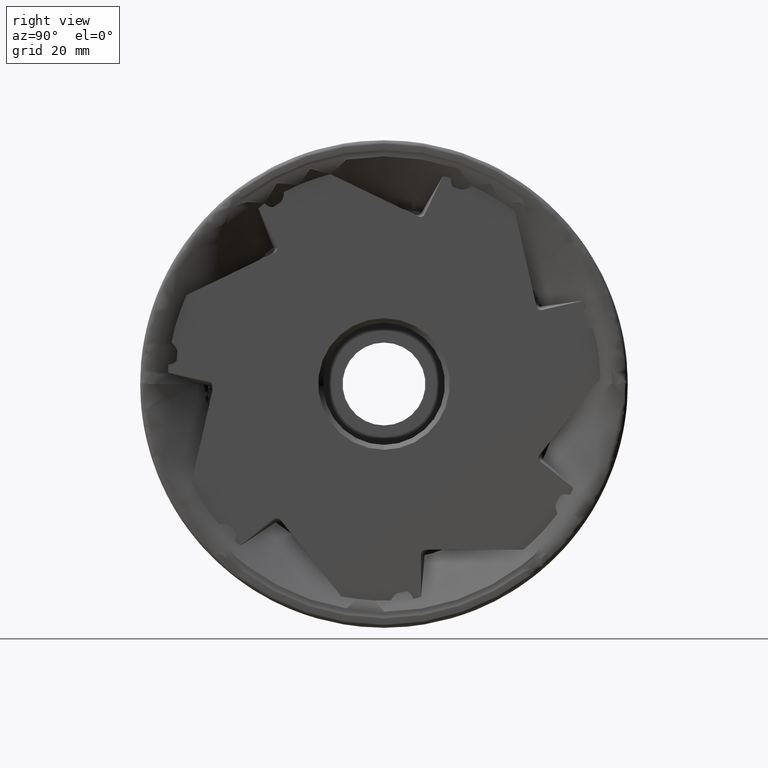
[diagram: clean part render]
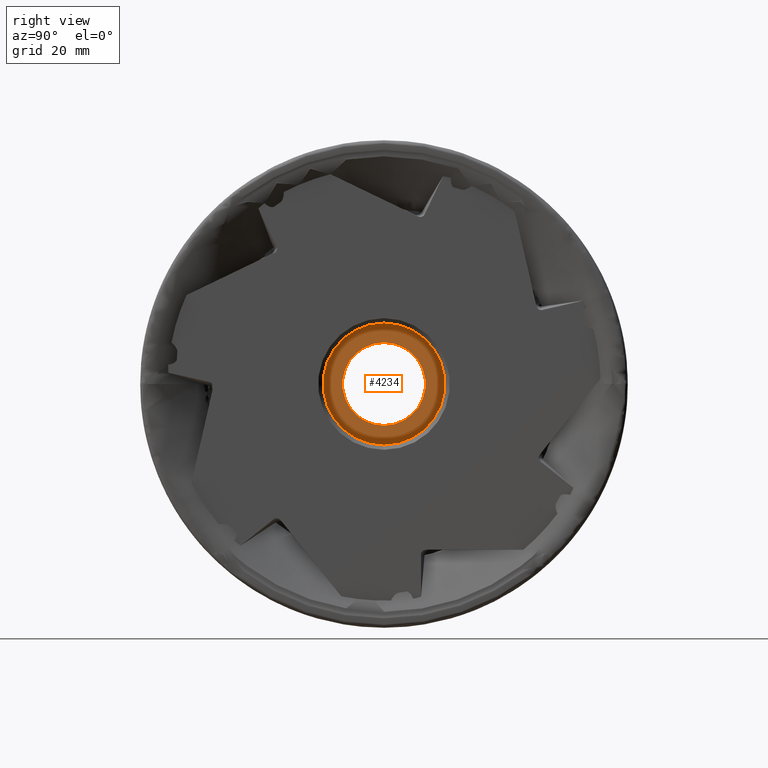
[diagram: same view with one face highlighted and labeled with its STEP entity id]
A machine part, right view. The second image highlights one B-rep face of the part: STEP entity #4234.
In plain terms, the highlighted planar face has unit normal (-1, 0, 0).
Its self-contained STEP definition (entity closure, byte-faithful):
#381 = CIRCLE ( 'NONE', #6011, 8.499999999999998200 ) ;
#586 = EDGE_LOOP ( 'NONE', ( #18592, #15398 ) ) ;
#1496 = DIRECTION ( 'NONE',  ( 1.000000000000000000, -0.0000000000000000000, -0.0000000000000000000 ) ) ;
#2013 = CARTESIAN_POINT ( 'NONE',  ( -13.50000000000000000, 1.530808498934191300E-015, 12.49999999999999800 ) ) ;
#2398 = FACE_BOUND ( 'NONE', #22886, .T. ) ;
#2671 = DIRECTION ( 'NONE',  ( -1.000000000000000000, 0.0000000000000000000, 0.0000000000000000000 ) ) ;
#3298 = VERTEX_POINT ( 'NONE', #11921 ) ;
#3446 = CARTESIAN_POINT ( 'NONE',  ( -13.50000000000000000, 0.0000000000000000000, 0.0000000000000000000 ) ) ;
#4181 = DIRECTION ( 'NONE',  ( 1.000000000000000000, -0.0000000000000000000, -0.0000000000000000000 ) ) ;
#4234 = ADVANCED_FACE ( 'NONE', ( #2398, #10681 ), #18458, .F. ) ;
#4514 = CARTESIAN_POINT ( 'NONE',  ( -13.50000000000000000, 1.040949779275249900E-015, 8.499999999999998200 ) ) ;
#4522 = CARTESIAN_POINT ( 'NONE',  ( -13.50000000000000000, 12.49999999999999800, 0.0000000000000000000 ) ) ;
#5078 = AXIS2_PLACEMENT_3D ( 'NONE', #22011, #4181, #18408 ) ;
#5081 = AXIS2_PLACEMENT_3D ( 'NONE', #4522, #2671, #15060 ) ;
#6011 = AXIS2_PLACEMENT_3D ( 'NONE', #3446, #1496, #10232 ) ;
#6232 = CARTESIAN_POINT ( 'NONE',  ( -13.50000000000000000, 0.0000000000000000000, 0.0000000000000000000 ) ) ;
#7038 = CIRCLE ( 'NONE', #5078, 12.49999999999999800 ) ;
#8499 = DIRECTION ( 'NONE',  ( 0.0000000000000000000, 0.0000000000000000000, -1.000000000000000000 ) ) ;
#10232 = DIRECTION ( 'NONE',  ( 0.0000000000000000000, 0.0000000000000000000, -1.000000000000000000 ) ) ;
#10492 = ORIENTED_EDGE ( 'NONE', *, *, #14802, .F. ) ;
#10681 = FACE_OUTER_BOUND ( 'NONE', #586, .T. ) ;
#11921 = CARTESIAN_POINT ( 'NONE',  ( -13.50000000000000000, 0.0000000000000000000, -8.499999999999998200 ) ) ;
#12337 = EDGE_CURVE ( 'NONE', #17905, #13187, #7038, .T. ) ;
#12920 = EDGE_CURVE ( 'NONE', #19143, #3298, #16733, .T. ) ;
#13187 = VERTEX_POINT ( 'NONE', #2013 ) ;
#13271 = EDGE_CURVE ( 'NONE', #13187, #17905, #15340, .T. ) ;
#13305 = DIRECTION ( 'NONE',  ( 0.0000000000000000000, 0.0000000000000000000, -1.000000000000000000 ) ) ;
#13851 = DIRECTION ( 'NONE',  ( 1.000000000000000000, -0.0000000000000000000, -0.0000000000000000000 ) ) ;
#14802 = EDGE_CURVE ( 'NONE', #3298, #19143, #381, .T. ) ;
#15060 = DIRECTION ( 'NONE',  ( 0.0000000000000000000, 0.0000000000000000000, 1.000000000000000000 ) ) ;
#15340 = CIRCLE ( 'NONE', #16546, 12.49999999999999800 ) ;
#15398 = ORIENTED_EDGE ( 'NONE', *, *, #13271, .T. ) ;
#16546 = AXIS2_PLACEMENT_3D ( 'NONE', #6232, #20239, #13305 ) ;
#16733 = CIRCLE ( 'NONE', #21393, 8.499999999999998200 ) ;
#17203 = ORIENTED_EDGE ( 'NONE', *, *, #12920, .F. ) ;
#17905 = VERTEX_POINT ( 'NONE', #22592 ) ;
#18408 = DIRECTION ( 'NONE',  ( 0.0000000000000000000, 0.0000000000000000000, -1.000000000000000000 ) ) ;
#18458 = PLANE ( 'NONE',  #5081 ) ;
#18592 = ORIENTED_EDGE ( 'NONE', *, *, #12337, .T. ) ;
#19143 = VERTEX_POINT ( 'NONE', #4514 ) ;
#20239 = DIRECTION ( 'NONE',  ( 1.000000000000000000, -0.0000000000000000000, -0.0000000000000000000 ) ) ;
#20936 = CARTESIAN_POINT ( 'NONE',  ( -13.50000000000000000, 0.0000000000000000000, 0.0000000000000000000 ) ) ;
#21393 = AXIS2_PLACEMENT_3D ( 'NONE', #20936, #13851, #8499 ) ;
#22011 = CARTESIAN_POINT ( 'NONE',  ( -13.50000000000000000, 0.0000000000000000000, 0.0000000000000000000 ) ) ;
#22592 = CARTESIAN_POINT ( 'NONE',  ( -13.50000000000000000, 0.0000000000000000000, -12.49999999999999800 ) ) ;
#22886 = EDGE_LOOP ( 'NONE', ( #10492, #17203 ) ) ;